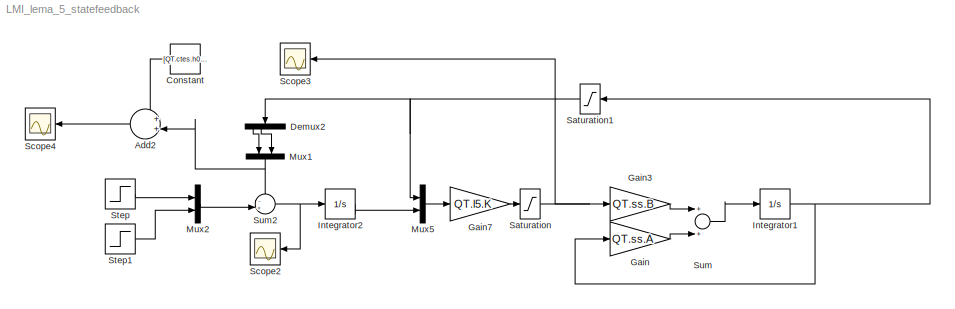
MODEL LMI_lema_5_statefeedback
KIND model
BLOCK [Sum] Add2
  IconShape = round
  InputSameDT = off
  Inputs = ++|
  OutDataTypeStr = Inherit: Inherit via internal rule
  Ports = [2, 1]
  SID = 179
  SaturateOnIntegerOverflow = off
BLOCK [Constant] Constant
  SID = 180
  Value = [QT.ctes.h0(1) QT.ctes.h0(2)]
BLOCK [Demux] Demux2
  DisplayOption = bar
  Ports = [1, 4]
  SID = 154
BLOCK [Gain] Gain
  Gain = QT.ss.A
  Multiplication = Matrix(K*u)
  OutDataTypeStr = Inherit: Inherit via internal rule
  ParamDataTypeStr = Inherit: Inherit via internal rule
  SID = 5
  SaturateOnIntegerOverflow = off
BLOCK [Gain] Gain3
  Gain = QT.ss.B
  Multiplication = Matrix(K*u)
  OutDataTypeStr = Inherit: Inherit via internal rule
  ParamDataTypeStr = Inherit: Inherit via internal rule
  SID = 10
  SaturateOnIntegerOverflow = off
BLOCK [Gain] Gain7
  Gain = QT.l5.K
  Multiplication = Matrix(K*u)
  OutDataTypeStr = Inherit: Inherit via internal rule
  ParamDataTypeStr = Inherit: Inherit via internal rule
  SID = 88
  SaturateOnIntegerOverflow = off
BLOCK [Integrator] Integrator1
  Ports = [1, 1]
  SID = 91
BLOCK [Integrator] Integrator2
  Ports = [1, 1]
  SID = 152
BLOCK [Mux] Mux1
  DisplayOption = bar
  Inputs = 2
  Ports = [2, 1]
  SID = 155
BLOCK [Mux] Mux2
  DisplayOption = bar
  Inputs = 2
  Ports = [2, 1]
  SID = 60
BLOCK [Mux] Mux5
  DisplayOption = bar
  Inputs = 2
  Ports = [2, 1]
  SID = 151
BLOCK [Saturate] Saturation
  InputPortMap = u0
  LowerLimit = -1.5
  Ports = [1, 1]
  SID = 156
  UpperLimit = 1.5
BLOCK [Saturate] Saturation1
  InputPortMap = u0
  LowerLimit = -5
  Ports = [1, 1]
  SID = 178
  UpperLimit = 10
BLOCK [Scope] Scope2
  DataFormat = StructureWithTime
  Floating = off
  NumInputPorts = 1
  Ports = [1]
  SID = 157
  SampleTime = 1
  YMax = 2.25
  YMin = -0.75
BLOCK [Scope] Scope3
  DataFormat = StructureWithTime
  Floating = off
  NumInputPorts = 1
  Ports = [1]
  SID = 160
  SampleInput = on
  SampleTime = 1
  SaveName = ScopeData2
  YMax = 2.25
  YMin = -0.75
BLOCK [Scope] Scope4
  DataFormat = StructureWithTime
  Floating = off
  LimitDataPoints = off
  NumInputPorts = 1
  Ports = [1]
  SID = 181
  SampleTime = 0
  SaveName = Simulado
  SaveToWorkspace = on
  TimeRange = 10
BLOCK [Step] Step
  SID = 42
  SampleTime = 0
  Time = 300
BLOCK [Step] Step1
  SID = 43
  SampleTime = 0
  Time = 1100
BLOCK [Sum] Sum
  InputSameDT = off
  OutDataTypeStr = Inherit: Inherit via internal rule
  Ports = [2, 1]
  SID = 7
  SaturateOnIntegerOverflow = off
BLOCK [Sum] Sum2
  IconShape = round
  InputSameDT = off
  Inputs = -+|
  OutDataTypeStr = Inherit: Inherit via internal rule
  Ports = [2, 1]
  SID = 153
  SaturateOnIntegerOverflow = off
LINE Add2:1 -> Scope4:1
LINE Constant:1 -> Add2:1
LINE Demux2:1 -> Mux1:1
LINE Demux2:2 -> Mux1:2
LINE Gain3:1 -> Sum:1
LINE Gain7:1 -> Saturation:1
LINE Gain:1 -> Sum:2
NET Integrator1:1 -> Gain:1, Saturation1:1
LINE Integrator2:1 -> Mux5:2
NET Mux1:1 -> Add2:2, Sum2:1
LINE Mux2:1 -> Sum2:2
LINE Mux5:1 -> Gain7:1
NET Saturation1:1 -> Demux2:1, Mux5:1
NET Saturation:1 -> Gain3:1, Scope3:1
LINE Step1:1 -> Mux2:2
LINE Step:1 -> Mux2:1
NET Sum2:1 -> Integrator2:1, Scope2:1
LINE Sum:1 -> Integrator1:1
note: NET lines group one-source signal fan-out (src -> all destinations, sorted); 1:1 wires keep LINE
